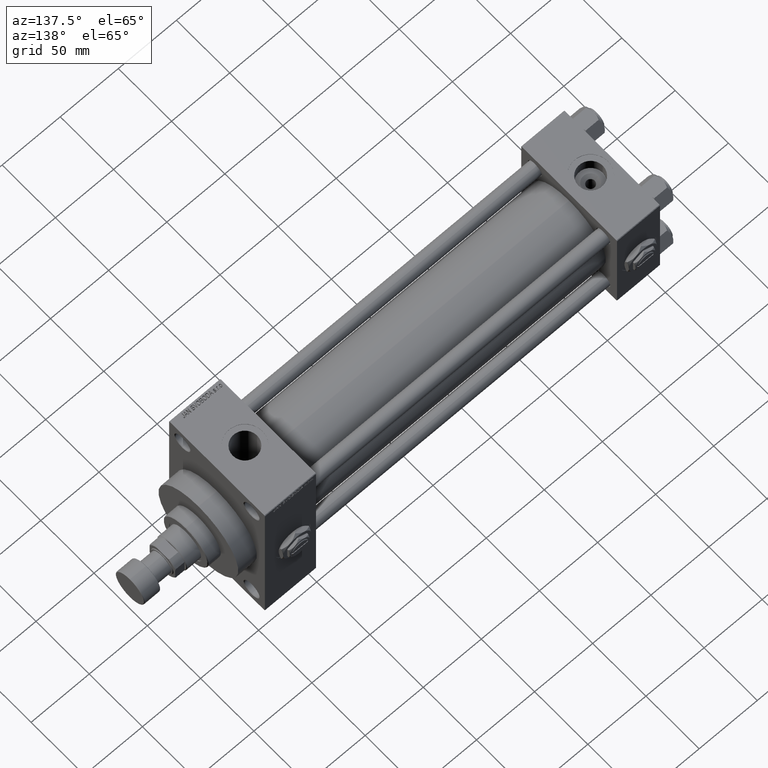
[diagram: clean part render]
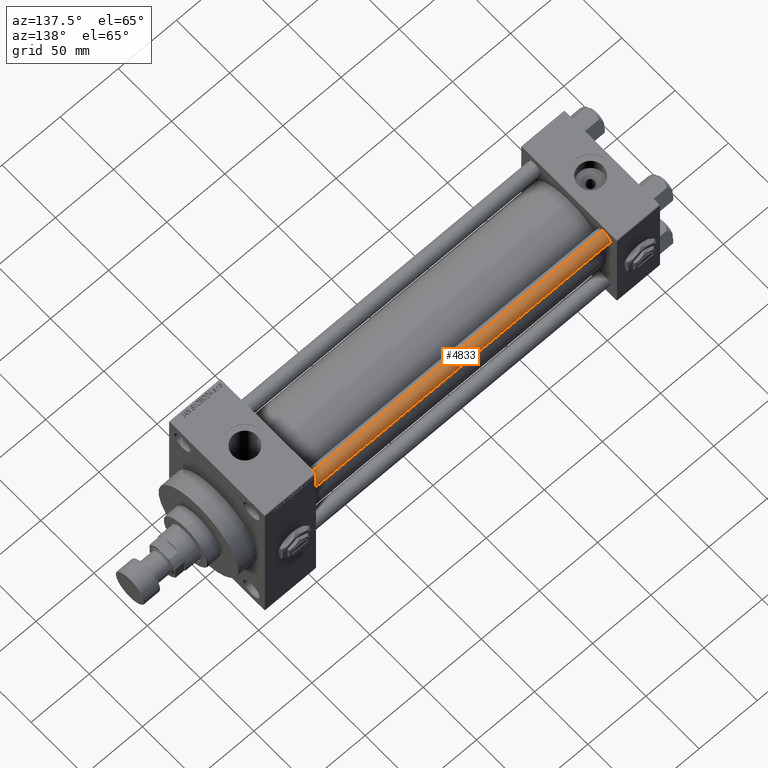
[diagram: same view with one face highlighted and labeled with its STEP entity id]
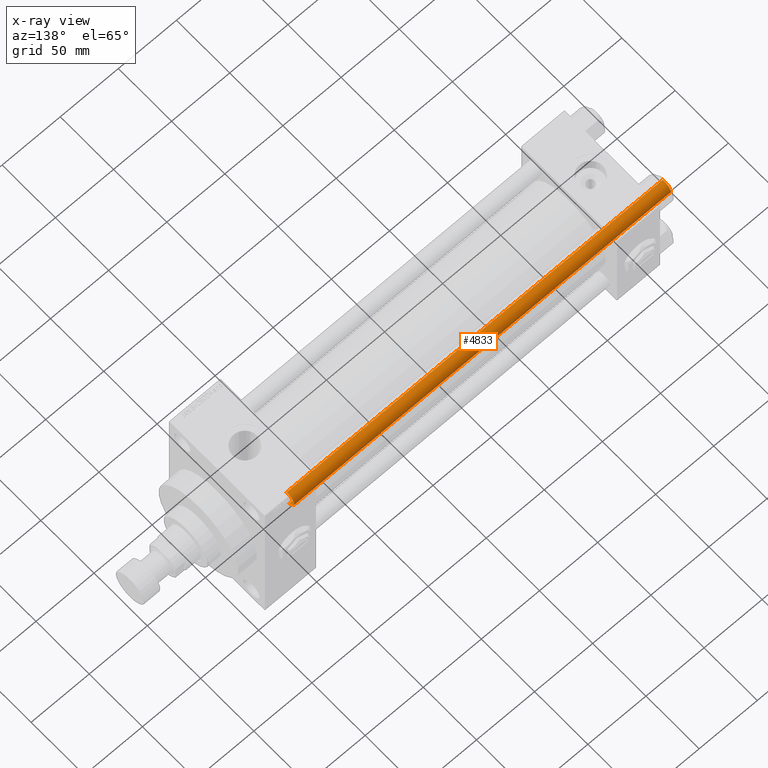
[diagram: x-ray of the same camera — body ghosted, the highlighted face saturated]
A machine part, auxiliary view. The second image highlights one B-rep face of the part: STEP entity #4833.
The next image is the same camera in x-ray: the body ghosted, the highlighted face saturated — about 0% of this face is hidden behind the body in this view.
In plain terms, the highlighted cylindrical surface (edge-blend (fillet) strip) has radius 6 mm, axis along (-1, -0, 0).
Its self-contained STEP definition (entity closure, byte-faithful):
#448 = AXIS2_PLACEMENT_3D ( 'NONE', #48864, #22952, #42087 ) ;
#2900 = EDGE_CURVE ( 'NONE', #25055, #40110, #6765, .T. ) ;
#4421 = CYLINDRICAL_SURFACE ( 'NONE', #47037, 6.000000000000000888 ) ;
#4833 = ADVANCED_FACE ( 'NONE', ( #34910 ), #4421, .T. ) ;
#5894 = CARTESIAN_POINT ( 'NONE',  ( 6.000000000000000888, 7.347880794884120722E-16, 0.5000000000000004441 ) ) ;
#6391 = ORIENTED_EDGE ( 'NONE', *, *, #45511, .T. ) ;
#6691 = CIRCLE ( 'NONE', #26801, 6.000000000000000888 ) ;
#6765 = LINE ( 'NONE', #22126, #41327 ) ;
#7070 = VECTOR ( 'NONE', #30269, 1000.000000000000000 ) ;
#10965 = DIRECTION ( 'NONE',  ( -1.000000000000000000, 0.000000000000000000, 0.000000000000000000 ) ) ;
#12476 = ORIENTED_EDGE ( 'NONE', *, *, #14224, .F. ) ;
#14183 = DIRECTION ( 'NONE',  ( 1.000000000000000000, 0.000000000000000000, 0.000000000000000000 ) ) ;
#14224 = EDGE_CURVE ( 'NONE', #28458, #31118, #39088, .T. ) ;
#19785 = CARTESIAN_POINT ( 'NONE',  ( 0.000000000000000000, 0.000000000000000000, 325.0000000000000000 ) ) ;
#22126 = CARTESIAN_POINT ( 'NONE',  ( 6.000000000000000888, 7.347880794884120722E-16, 325.0000000000000000 ) ) ;
#22952 = DIRECTION ( 'NONE',  ( -0.000000000000000000, -0.000000000000000000, 1.000000000000000000 ) ) ;
#23462 = CARTESIAN_POINT ( 'NONE',  ( -6.000000000000000888, 0.000000000000000000, 325.0000000000000000 ) ) ;
#25055 = VERTEX_POINT ( 'NONE', #32693 ) ;
#26258 = DIRECTION ( 'NONE',  ( 0.000000000000000000, 0.000000000000000000, -1.000000000000000000 ) ) ;
#26801 = AXIS2_PLACEMENT_3D ( 'NONE', #49381, #26258, #14183 ) ;
#28458 = VERTEX_POINT ( 'NONE', #48892 ) ;
#29382 = CIRCLE ( 'NONE', #448, 6.000000000000000888 ) ;
#30269 = DIRECTION ( 'NONE',  ( -0.000000000000000000, -0.000000000000000000, -1.000000000000000000 ) ) ;
#31118 = VERTEX_POINT ( 'NONE', #38863 ) ;
#32693 = CARTESIAN_POINT ( 'NONE',  ( 6.000000000000000888, 7.347880794884120722E-16, 324.5000000000001137 ) ) ;
#32952 = ORIENTED_EDGE ( 'NONE', *, *, #40217, .T. ) ;
#34910 = FACE_OUTER_BOUND ( 'NONE', #36875, .T. ) ;
#36875 = EDGE_LOOP ( 'NONE', ( #32952, #41931, #6391, #12476 ) ) ;
#38863 = CARTESIAN_POINT ( 'NONE',  ( -6.000000000000000888, 0.000000000000000000, 0.5000000000000004441 ) ) ;
#39088 = LINE ( 'NONE', #23462, #7070 ) ;
#40110 = VERTEX_POINT ( 'NONE', #5894 ) ;
#40217 = EDGE_CURVE ( 'NONE', #28458, #25055, #6691, .T. ) ;
#41327 = VECTOR ( 'NONE', #45264, 1000.000000000000000 ) ;
#41931 = ORIENTED_EDGE ( 'NONE', *, *, #2900, .T. ) ;
#42087 = DIRECTION ( 'NONE',  ( 1.000000000000000000, 0.000000000000000000, 0.000000000000000000 ) ) ;
#45264 = DIRECTION ( 'NONE',  ( -0.000000000000000000, -0.000000000000000000, -1.000000000000000000 ) ) ;
#45511 = EDGE_CURVE ( 'NONE', #40110, #31118, #29382, .T. ) ;
#46188 = DIRECTION ( 'NONE',  ( -0.000000000000000000, -0.000000000000000000, -1.000000000000000000 ) ) ;
#47037 = AXIS2_PLACEMENT_3D ( 'NONE', #19785, #46188, #10965 ) ;
#48864 = CARTESIAN_POINT ( 'NONE',  ( 0.000000000000000000, 0.000000000000000000, 0.5000000000000004441 ) ) ;
#48892 = CARTESIAN_POINT ( 'NONE',  ( -6.000000000000000888, 0.000000000000000000, 324.5000000000001137 ) ) ;
#49381 = CARTESIAN_POINT ( 'NONE',  ( 0.000000000000000000, 0.000000000000000000, 324.5000000000001137 ) ) ;